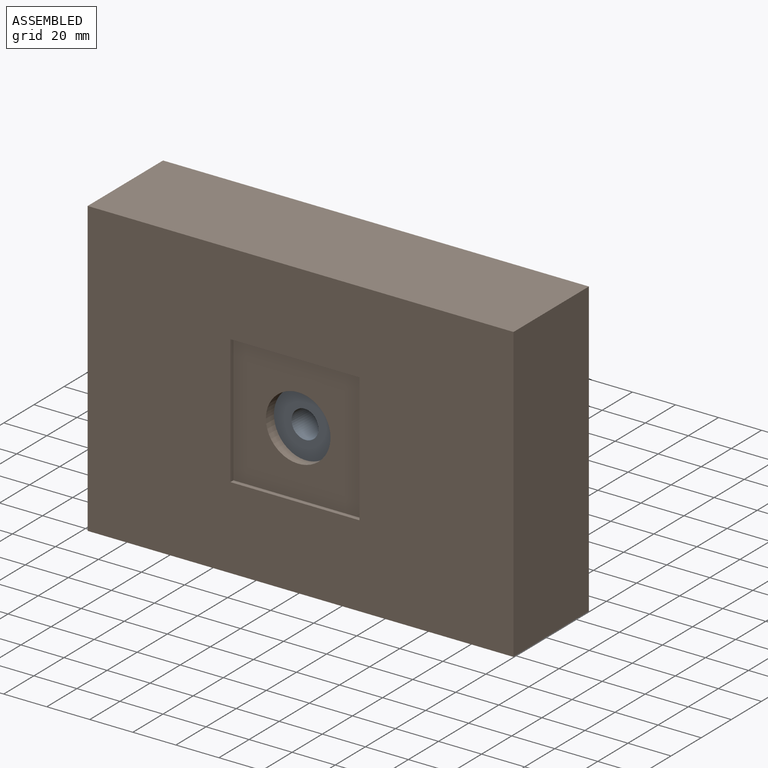
[diagram: assembled view]
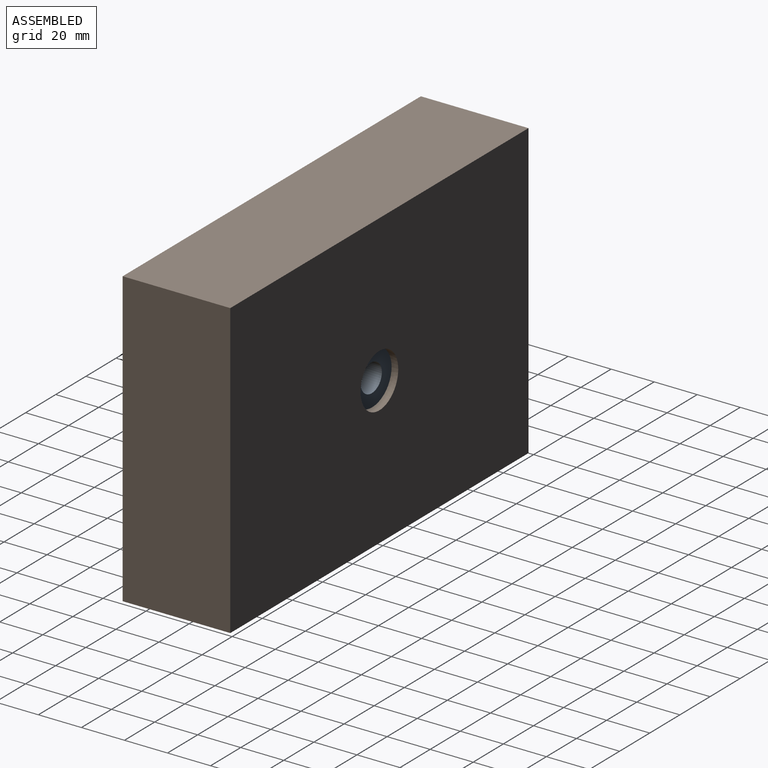
[diagram: assembled view, second angle]
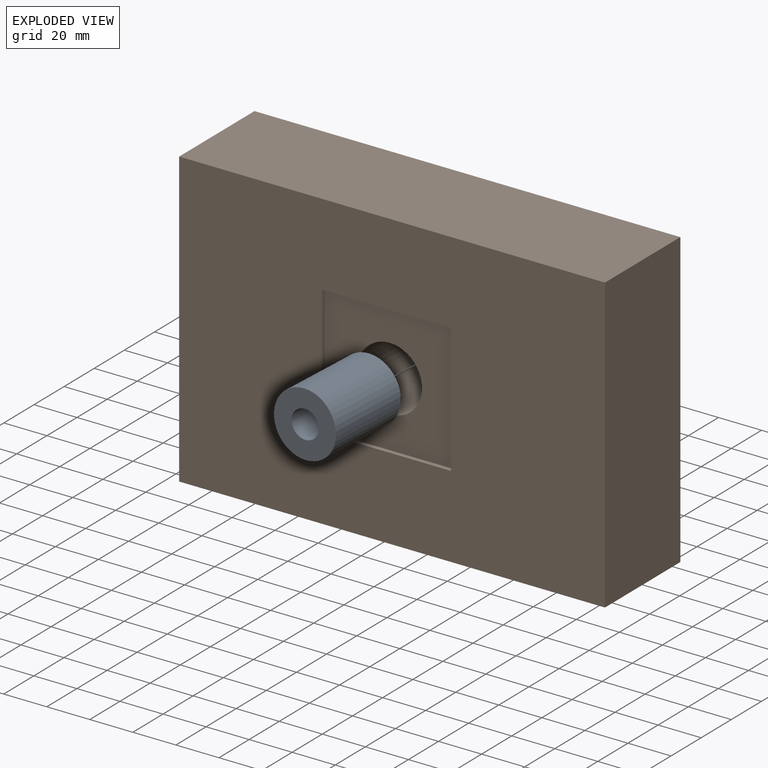
[diagram: exploded view]
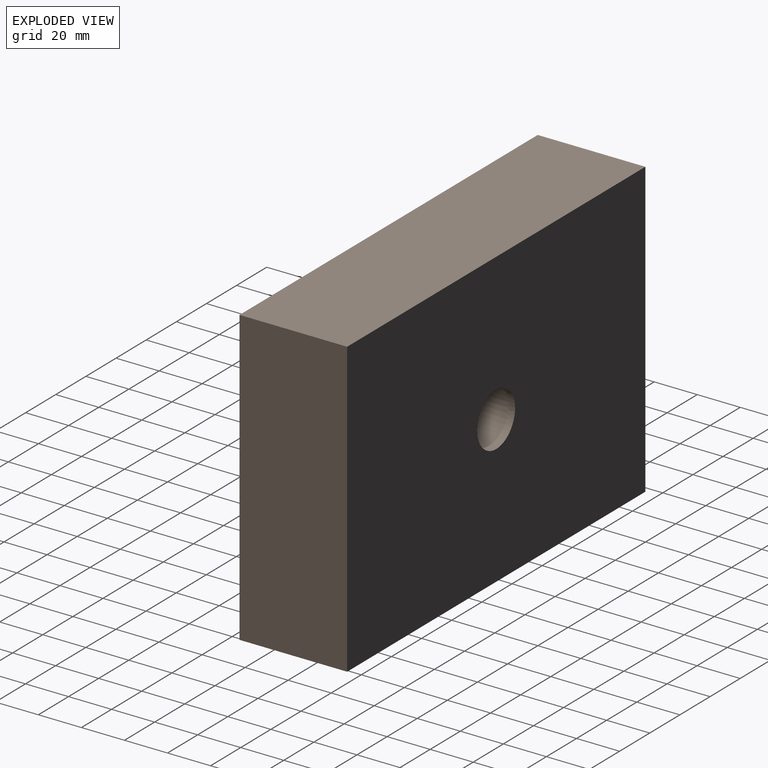
[diagram: exploded view, second angle]
ASSEMBLY  parts=2 mates=2
PART A: 4 faces, bbox 30x40x30 mm
  f0: cylinder r=6.5mm len=40mm, axis (0,1,0), area 1633.6mm2, adj f2,f3
  f1: cylinder r=15mm len=40mm, axis (0,1,0), area 3769.9mm2, adj f2,f3
  f2: plane 30x30mm, normal (0,-1,0), area 574.1mm2, adj f0,f1
  f3: plane 30x30mm, normal (0,1,0), area 574.1mm2, adj f0,f1
PART B: 14 faces, bbox 198.2x51.6x136.8 mm
  f0: plane 197.85x136.45mm, normal (0,-1,0), area 23396.1mm2, adj f2,f3,f4,f5,f9,f10,f11,f12
  f1: cylinder r=15mm len=46.49mm, axis (-0.05,-1,0), area 4165.5mm2, adj f8,f13
  f2: plane 136.45x50mm, normal (1,0,0), area 6822.4mm2, adj f0,f3,f5,f6
  f3: plane 197.85x50mm, normal (0,0,1), area 9892.5mm2, adj f0,f2,f4,f6
  f4: plane 136.45x50mm, normal (-1,0,0), area 6822.4mm2, adj f0,f3,f5,f6
  f5: plane 197.85x50mm, normal (0,0,-1), area 9892.5mm2, adj f0,f2,f4,f6
  f6: plane 198.12x136.72mm, normal (0,1,0), area 26504.6mm2, adj f2,f3,f4,f5,f7
  f7: cylinder r=12.5mm len=25.2mm, axis (-0.05,-1,0), area 303.8mm2, adj f6,f8
  f8: plane 30x29.96mm, normal (-0.05,-1,0), area 216mm2, adj f1,f7
  f9: plane 60x2mm, normal (-1,0,0), area 120mm2, adj f0,f10,f12,f13
  f10: plane 60x2mm, normal (0,0,-1), area 120mm2, adj f0,f9,f11,f13
  f11: plane 60x2mm, normal (1,0,0), area 120mm2, adj f0,f10,f12,f13
  f12: plane 60x2mm, normal (0,0,1), area 120mm2, adj f0,f9,f11,f13
  f13: plane 60.33x60.33mm, normal (0,-1,0), area 2892.2mm2, adj f1,f9,f10,f11,f12
PLACE A rot(axis=(0.02,0.94,-0.34),8.7deg) t=(-14.81,18.31,-26.19)mm
PLACE B t=(-14.61,22.17,-26.19)mm fixed
MATE planar A.f1 <-> B.f1  axis (0.05,1,0) through (-14.81,18.31,-26.19)mm
MATE cylindrical A.f1 <-> B.f1  axis (0.05,1,0) through (-15.86,-1.66,-26.19)mm
